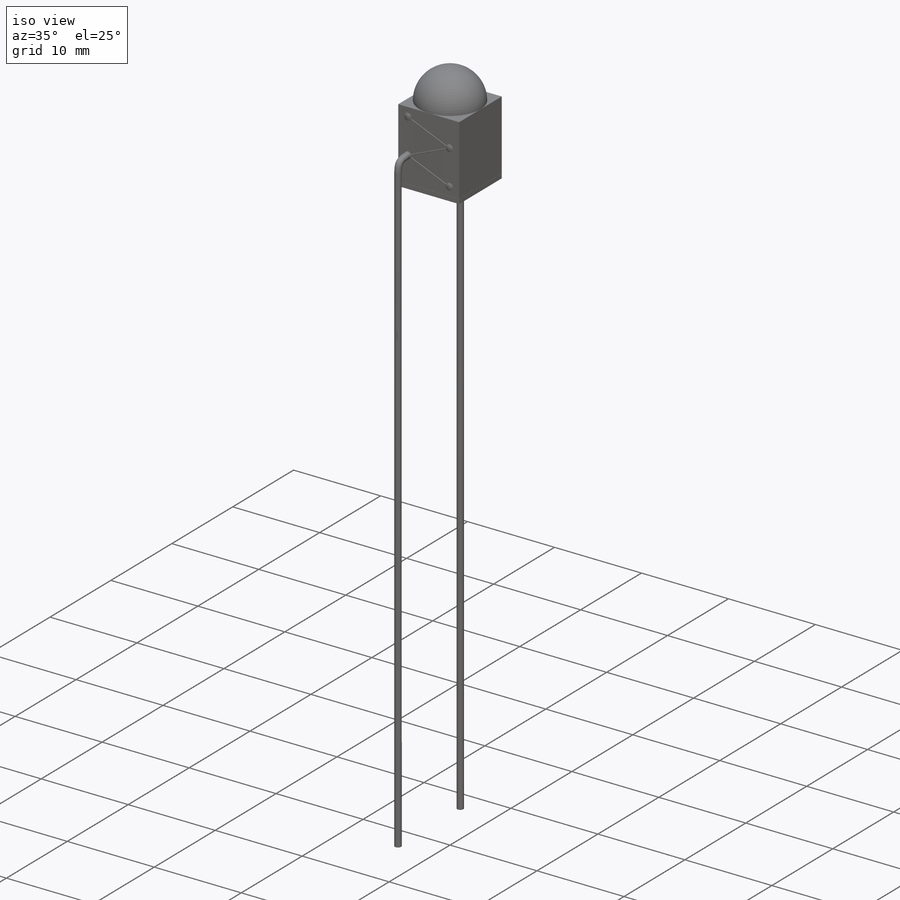
[diagram: iso view]
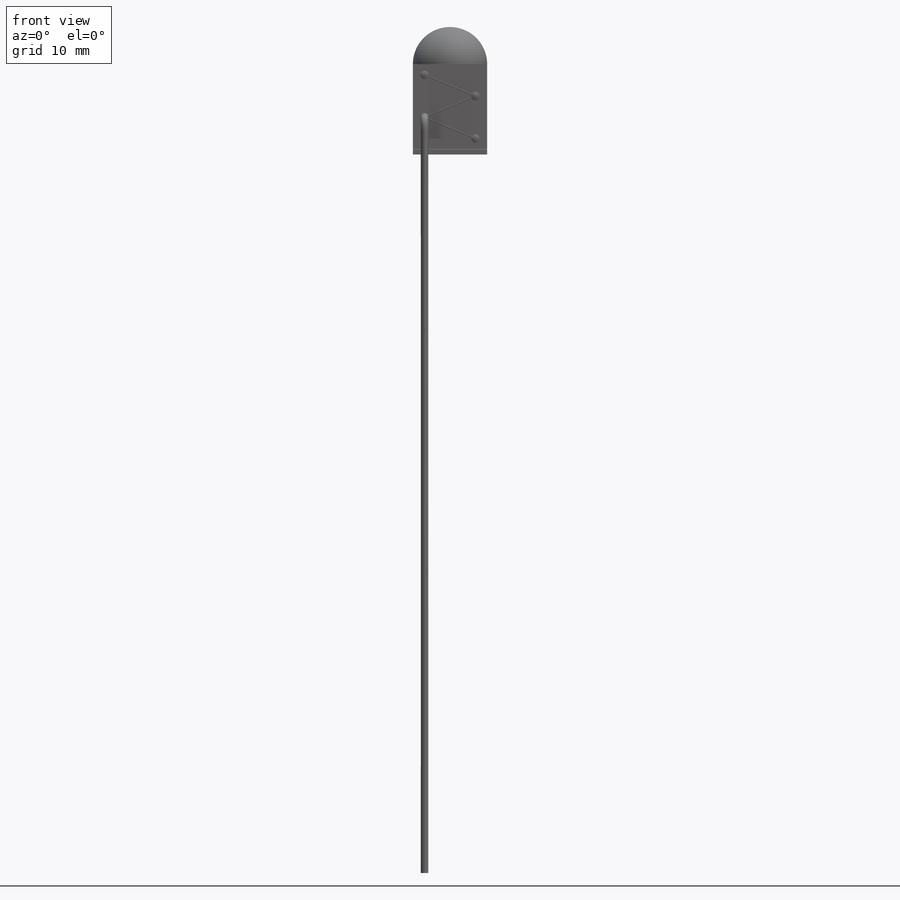
[diagram: front view]
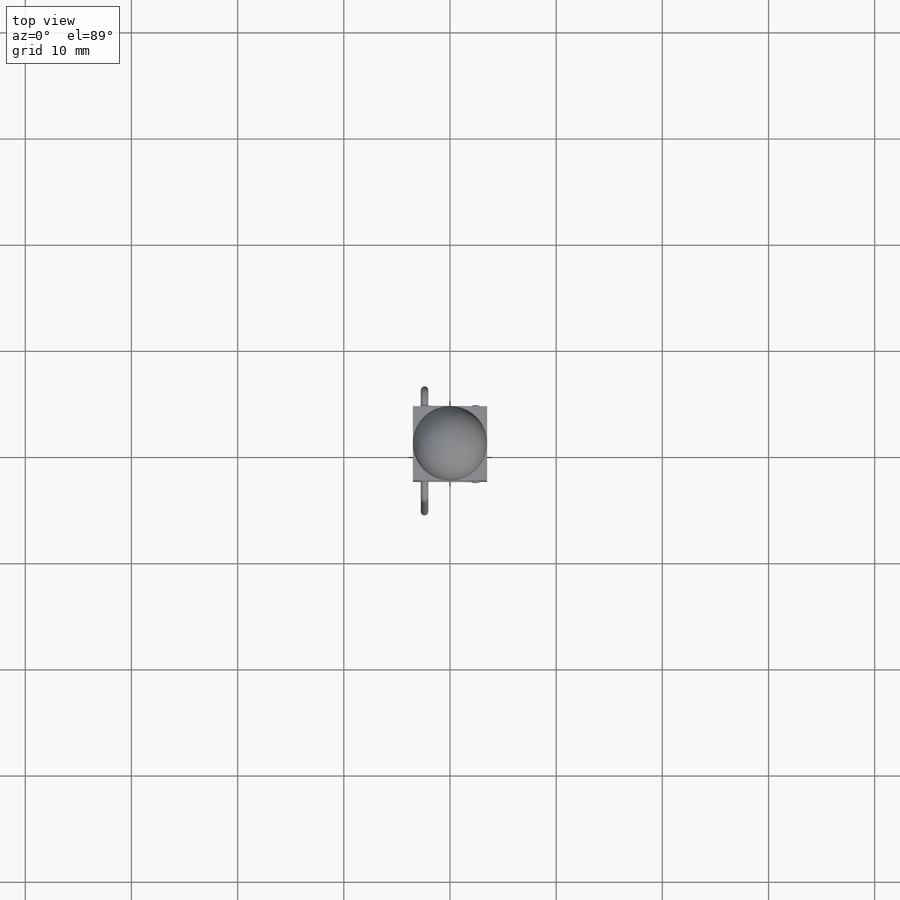
[diagram: top view]
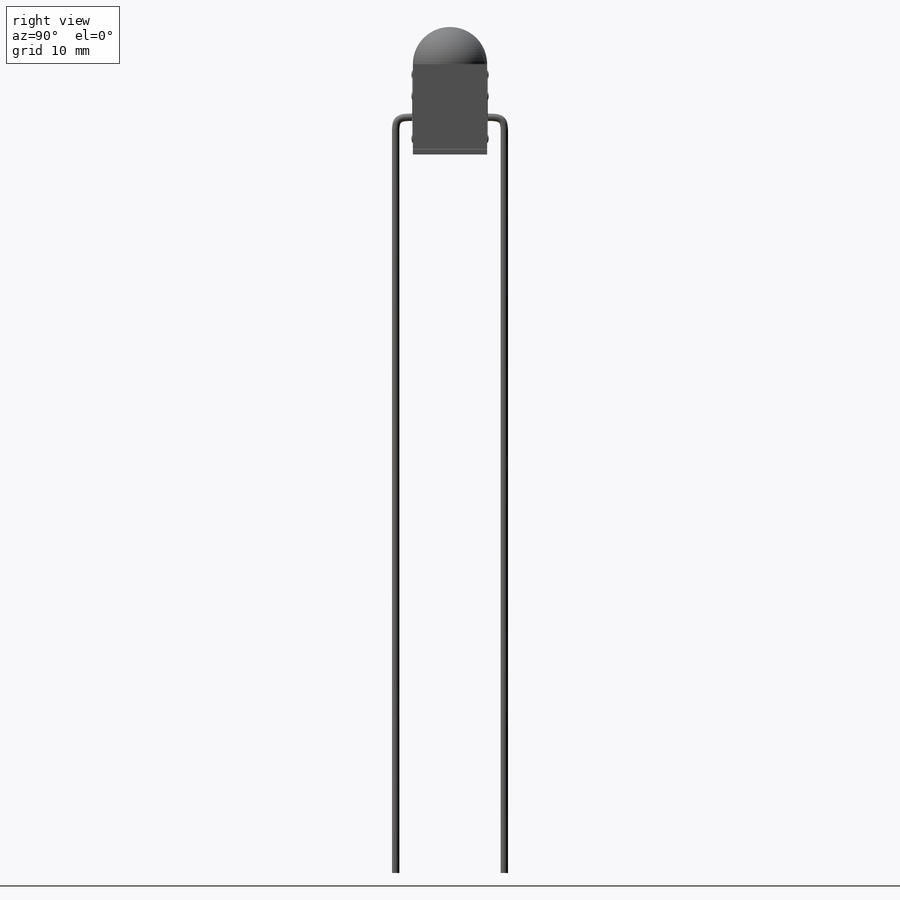
[diagram: right view]
SOLIDWORKS PART (.sldprt)
format: sldprt  version: not decoded by parser v0  size: 885,248 bytes
history: native  units: mm
features: sketch x9, plane x9, dome x4, extrude x3, sweep x2, mirror x2, material x1, pattern_linear x1 (+13 scaffold rows collapsed)
feature tree (44):
  scaffold x13  (default folders/planes/origin — collapsed)
  material  "Material <not specified>"
  sketch  "Sketch1"  dims[c1.D1=~27.482152mm c1.D2=~36.551262mm c2.D1=7.0mm c2.D2=110.0mm]
  extrude  "Boss-Extrude1"  Depth=2mm
  pattern_linear  "LPattern3"  Count1=4 Count2=1 Spacing1=2.0001mm Spacing2=2.5mm
  plane  "Plane2"  Offset=0.01mm
  sketch  "Sketch4"  dims[D1=7.0mm D2=7.0mm]
  extrude  "Boss-Extrude3"  Depth=0.5mm
  plane  "Plane3"  Offset=0.001mm
  sketch  "Sketch6"  dims[D1=3.5mm]
  plane  "Plane4"  Offset=3.5mm
  sketch  "Sketch7"  dims[c1.D1=3.5mm c2.D1=360.0deg c2.D3=0.001mm c2.D4=10.0mm c2.D7=0.0mm]
  plane  "Plane11"  Offset=0.001mm
  sketch  "Sketch15"  dims[D3=~0.589543mm D1=1.1mm D2=1.1mm]
  extrude  "Boss-Extrude6"  Depth=0.05mm
  dome  "Dome5"
  dome  "Dome6"
  dome  "Dome7"
  dome  "Dome8"
  plane  "Plane12"  Offset=0.001mm
  sketch  "Sketch17"
  plane  "Plane13"
  sketch  "Sketch18"  dims[D1=0.1mm]
  sweep  "Sweep4"
  plane  "Plane14"  Offset=3.5mm
  mirror  "Mirror3"
  plane  "Plane15"  Offset=0.001mm
  sketch  "Sketch19"  dims[D1=0.3mm]
  plane  "Plane16"
  sketch  "Sketch20"  dims[D1=70.0mm]
  sweep  "Sweep5"
  mirror  "Mirror4"
decode coverage: 12 of 21 modeling features carry decoded parameters
note: ~ marks probable driven/reference dimensions
note: suppression state not decoded; provenance and decode notes live in map.json
